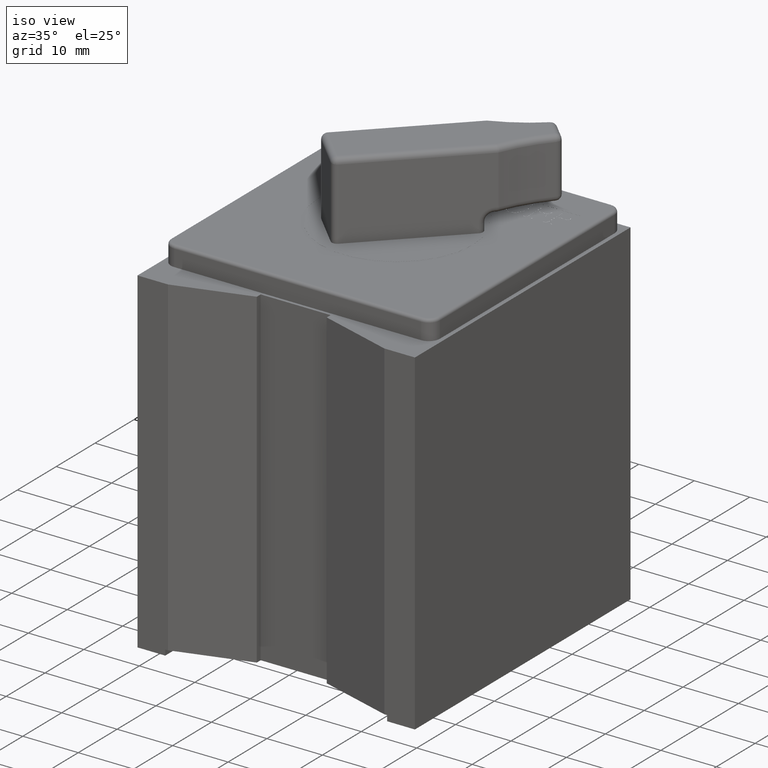
[diagram: clean part render]
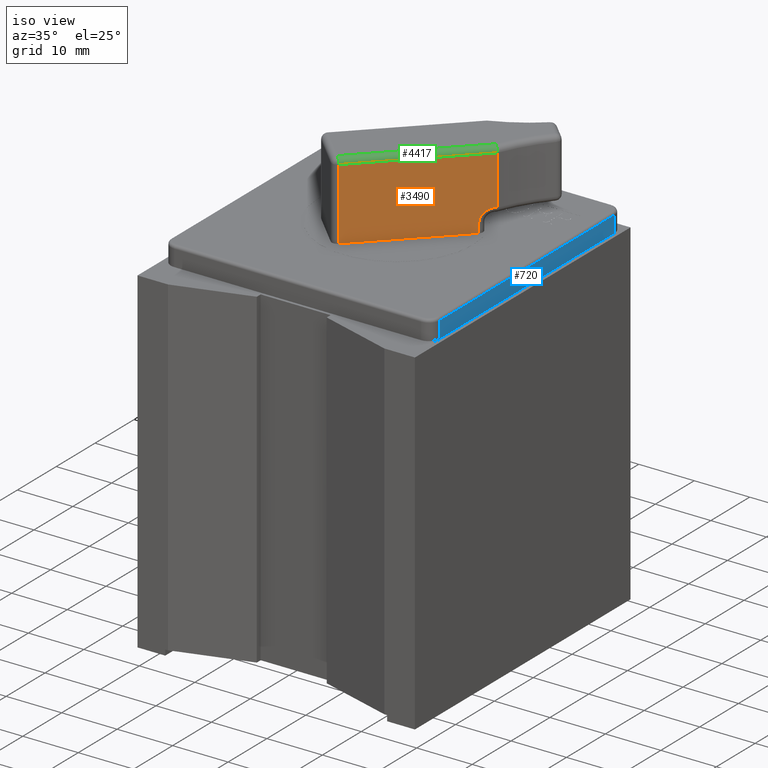
[diagram: same view with three faces highlighted in distinct colors, each labeled with its STEP entity id]
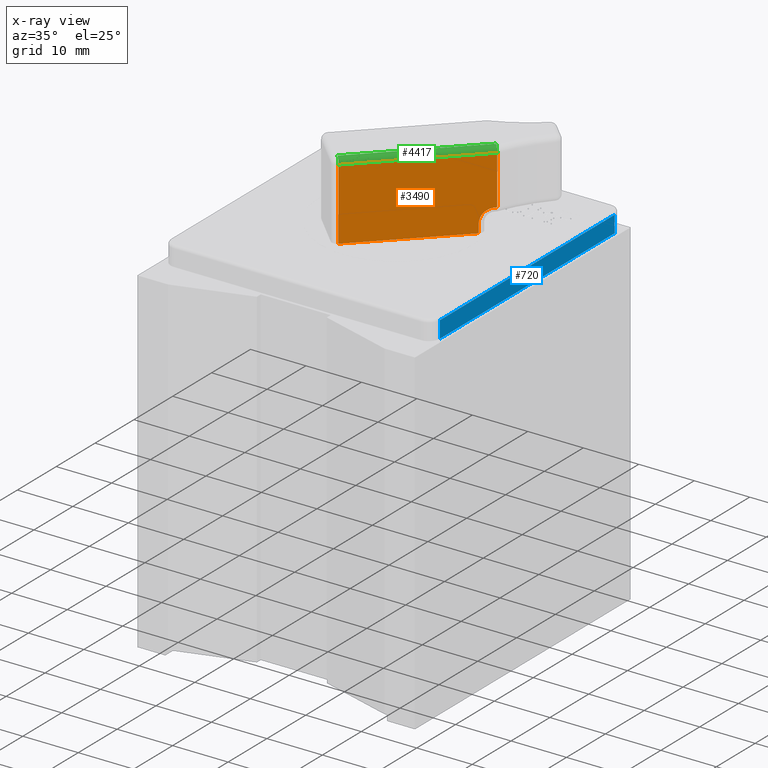
[diagram: x-ray of the same camera — body ghosted, the three highlighted faces saturated]
A machine part, iso view with three faces highlighted in distinct colors.
The next image is the same camera in x-ray (body ghosted, the three faces saturated) — at least one of them is partly hidden behind the body in this view.
Their STEP definitions:

[orange] entity #3490 — the highlighted planar face has unit normal (-0.7071, 0.7071, 0).
#12 = CARTESIAN_POINT ( 'NONE',  ( 6.959274367821016000, 8.852808281751851600, 113.2999999999761900 ) ) ;
#67 = EDGE_CURVE ( 'NONE', #334, #4733, #3634, .T. ) ;
#152 = FACE_OUTER_BOUND ( 'NONE', #5762, .T. ) ;
#173 = LINE ( 'NONE', #1313, #4930 ) ;
#211 = VECTOR ( 'NONE', #3506, 1000.000000000000000 ) ;
#237 = EDGE_CURVE ( 'NONE', #2357, #2518, #173, .T. ) ;
#241 = LINE ( 'NONE', #4512, #5709 ) ;
#334 = VERTEX_POINT ( 'NONE', #4701 ) ;
#354 = VERTEX_POINT ( 'NONE', #3319 ) ;
#364 = DIRECTION ( 'NONE',  ( -0.7071067811865477900, 0.7071067811865473500, 0.0000000000000000000 ) ) ;
#500 = CIRCLE ( 'NONE', #1202, 2.500000000000002700 ) ;
#605 = VERTEX_POINT ( 'NONE', #2183 ) ;
#723 = CARTESIAN_POINT ( 'NONE',  ( 7.167244478542658100, 9.060778392473492800, 124.6999999999761900 ) ) ;
#838 = LINE ( 'NONE', #5004, #4745 ) ;
#1084 = ORIENTED_EDGE ( 'NONE', *, *, #4727, .T. ) ;
#1202 = AXIS2_PLACEMENT_3D ( 'NONE', #12, #5080, #2323 ) ;
#1213 = ORIENTED_EDGE ( 'NONE', *, *, #1846, .T. ) ;
#1292 = CARTESIAN_POINT ( 'NONE',  ( -10.36484177124930600, -8.471307857318480600, 125.6999999999761900 ) ) ;
#1313 = CARTESIAN_POINT ( 'NONE',  ( -10.36484177124930600, -8.471307857318480600, 111.7999999999761900 ) ) ;
#1369 = DIRECTION ( 'NONE',  ( 0.0000000000000000000, 0.0000000000000000000, 1.000000000000000000 ) ) ;
#1402 = AXIS2_PLACEMENT_3D ( 'NONE', #1292, #364, #2686 ) ;
#1714 = DIRECTION ( 'NONE',  ( -0.7071067811865473500, -0.7071067811865477900, -0.0000000000000000000 ) ) ;
#1810 = LINE ( 'NONE', #4298, #1937 ) ;
#1846 = EDGE_CURVE ( 'NONE', #4976, #605, #241, .T. ) ;
#1937 = VECTOR ( 'NONE', #2011, 1000.000000000000000 ) ;
#1980 = DIRECTION ( 'NONE',  ( 0.7071067811865473500, 0.7071067811865477900, -0.0000000000000000000 ) ) ;
#2011 = DIRECTION ( 'NONE',  ( 0.0000000000000000000, 0.0000000000000000000, -1.000000000000000000 ) ) ;
#2183 = CARTESIAN_POINT ( 'NONE',  ( -9.657734990062758500, -7.764201076131932700, 124.6999999999761900 ) ) ;
#2212 = PLANE ( 'NONE',  #1402 ) ;
#2323 = DIRECTION ( 'NONE',  ( -0.7071067811865474600, -0.7071067811865477900, 0.0000000000000000000 ) ) ;
#2357 = VERTEX_POINT ( 'NONE', #4370 ) ;
#2431 = ORIENTED_EDGE ( 'NONE', *, *, #237, .T. ) ;
#2518 = VERTEX_POINT ( 'NONE', #4565 ) ;
#2686 = DIRECTION ( 'NONE',  ( -0.7071067811865473500, -0.7071067811865477900, 0.0000000000000000000 ) ) ;
#2822 = LINE ( 'NONE', #3904, #211 ) ;
#2974 = ORIENTED_EDGE ( 'NONE', *, *, #3710, .T. ) ;
#3129 = ORIENTED_EDGE ( 'NONE', *, *, #3521, .T. ) ;
#3319 = CARTESIAN_POINT ( 'NONE',  ( 5.191507414854647200, 7.085041328785481900, 113.2999999999761900 ) ) ;
#3490 = ADVANCED_FACE ( 'NONE', ( #152 ), #2212, .F. ) ;
#3506 = DIRECTION ( 'NONE',  ( -0.0000000000000000000, -0.0000000000000000000, 1.000000000000000000 ) ) ;
#3521 = EDGE_CURVE ( 'NONE', #354, #334, #500, .T. ) ;
#3634 = LINE ( 'NONE', #5634, #5490 ) ;
#3710 = EDGE_CURVE ( 'NONE', #605, #2357, #1810, .T. ) ;
#3904 = CARTESIAN_POINT ( 'NONE',  ( 7.167244478542659900, 9.060778392473492800, 125.6999999999761900 ) ) ;
#4298 = CARTESIAN_POINT ( 'NONE',  ( -9.657734990062758500, -7.764201076131932700, 125.6999999999761900 ) ) ;
#4370 = CARTESIAN_POINT ( 'NONE',  ( -9.657734990062758500, -7.764201076131932700, 111.7999999999761900 ) ) ;
#4512 = CARTESIAN_POINT ( 'NONE',  ( -10.36484177124931000, -8.471307857318484100, 124.6999999999761900 ) ) ;
#4565 = CARTESIAN_POINT ( 'NONE',  ( 5.191507414854645400, 7.085041328785474800, 111.7999999999761900 ) ) ;
#4685 = ORIENTED_EDGE ( 'NONE', *, *, #67, .T. ) ;
#4701 = CARTESIAN_POINT ( 'NONE',  ( 6.959274367821014300, 8.852808281751851600, 115.7999999999761900 ) ) ;
#4727 = EDGE_CURVE ( 'NONE', #2518, #354, #838, .T. ) ;
#4733 = VERTEX_POINT ( 'NONE', #5967 ) ;
#4745 = VECTOR ( 'NONE', #1369, 1000.000000000000000 ) ;
#4930 = VECTOR ( 'NONE', #5005, 999.9999999999998900 ) ;
#4974 = EDGE_CURVE ( 'NONE', #4733, #4976, #2822, .T. ) ;
#4976 = VERTEX_POINT ( 'NONE', #723 ) ;
#5004 = CARTESIAN_POINT ( 'NONE',  ( 5.191507414854645400, 7.085041328785474800, 125.6999999999761900 ) ) ;
#5005 = DIRECTION ( 'NONE',  ( 0.7071067811865473500, 0.7071067811865477900, 0.0000000000000000000 ) ) ;
#5080 = DIRECTION ( 'NONE',  ( -0.7071067811865476800, 0.7071067811865473500, 0.0000000000000000000 ) ) ;
#5251 = ORIENTED_EDGE ( 'NONE', *, *, #4974, .T. ) ;
#5490 = VECTOR ( 'NONE', #1980, 999.9999999999998900 ) ;
#5634 = CARTESIAN_POINT ( 'NONE',  ( -10.36484177124930600, -8.471307857318480600, 115.7999999999761900 ) ) ;
#5709 = VECTOR ( 'NONE', #1714, 999.9999999999998900 ) ;
#5762 = EDGE_LOOP ( 'NONE', ( #2431, #1084, #3129, #4685, #5251, #1213, #2974 ) ) ;
#5967 = CARTESIAN_POINT ( 'NONE',  ( 7.167244478542659900, 9.060778392473492800, 115.7999999999761900 ) ) ;

[blue] entity #720 — the highlighted planar face has unit normal (-1, 0, 0).
#522 = EDGE_CURVE ( 'NONE', #547, #1172, #3011, .T. ) ;
#547 = VERTEX_POINT ( 'NONE', #4318 ) ;
#720 = ADVANCED_FACE ( 'NONE', ( #3636 ), #1818, .F. ) ;
#805 = VECTOR ( 'NONE', #5747, 1000.000000000000000 ) ;
#860 = DIRECTION ( 'NONE',  ( -1.000000000000000000, 0.0000000000000000000, 0.0000000000000000000 ) ) ;
#1172 = VERTEX_POINT ( 'NONE', #1829 ) ;
#1174 = CARTESIAN_POINT ( 'NONE',  ( 17.32474630655250200, -20.21065196765025700, 111.2999999999761900 ) ) ;
#1189 = ORIENTED_EDGE ( 'NONE', *, *, #522, .F. ) ;
#1231 = VECTOR ( 'NONE', #4962, 1000.000000000000000 ) ;
#1250 = DIRECTION ( 'NONE',  ( -0.0000000000000000000, -1.000000000000000000, -0.0000000000000000000 ) ) ;
#1309 = LINE ( 'NONE', #2579, #4118 ) ;
#1347 = CARTESIAN_POINT ( 'NONE',  ( 17.32474630655250200, -20.21065196765025700, 111.7999999999761900 ) ) ;
#1751 = EDGE_CURVE ( 'NONE', #3140, #5177, #5934, .T. ) ;
#1818 = PLANE ( 'NONE',  #5531 ) ;
#1829 = CARTESIAN_POINT ( 'NONE',  ( 17.32474630655250200, 24.78934803234973900, 108.2999999999761900 ) ) ;
#2403 = ORIENTED_EDGE ( 'NONE', *, *, #3502, .T. ) ;
#2495 = DIRECTION ( 'NONE',  ( -0.0000000000000000000, -0.0000000000000000000, -1.000000000000000000 ) ) ;
#2517 = CARTESIAN_POINT ( 'NONE',  ( 17.32474630655250200, 24.78934803234973900, 111.7999999999761900 ) ) ;
#2579 = CARTESIAN_POINT ( 'NONE',  ( 17.32474630655250200, -20.21065196765025700, 111.2999999999761900 ) ) ;
#2625 = CARTESIAN_POINT ( 'NONE',  ( 17.32474630655250200, -20.21065196765025700, 108.2999999999761900 ) ) ;
#2869 = EDGE_CURVE ( 'NONE', #547, #3140, #1309, .T. ) ;
#3011 = LINE ( 'NONE', #2517, #4563 ) ;
#3049 = CARTESIAN_POINT ( 'NONE',  ( 17.32474630655250200, -20.21065196765025700, 111.7999999999761900 ) ) ;
#3140 = VERTEX_POINT ( 'NONE', #1174 ) ;
#3231 = ORIENTED_EDGE ( 'NONE', *, *, #1751, .T. ) ;
#3502 = EDGE_CURVE ( 'NONE', #5177, #1172, #3678, .T. ) ;
#3636 = FACE_OUTER_BOUND ( 'NONE', #3842, .T. ) ;
#3640 = ORIENTED_EDGE ( 'NONE', *, *, #2869, .T. ) ;
#3678 = LINE ( 'NONE', #2625, #1231 ) ;
#3842 = EDGE_LOOP ( 'NONE', ( #1189, #3640, #3231, #2403 ) ) ;
#4090 = CARTESIAN_POINT ( 'NONE',  ( 17.32474630655250200, -20.21065196765025700, 108.2999999999761900 ) ) ;
#4104 = DIRECTION ( 'NONE',  ( 0.0000000000000000000, 0.0000000000000000000, 1.000000000000000000 ) ) ;
#4118 = VECTOR ( 'NONE', #1250, 1000.000000000000000 ) ;
#4318 = CARTESIAN_POINT ( 'NONE',  ( 17.32474630655250200, 24.78934803234973900, 111.2999999999761900 ) ) ;
#4563 = VECTOR ( 'NONE', #2495, 1000.000000000000000 ) ;
#4962 = DIRECTION ( 'NONE',  ( 0.0000000000000000000, 1.000000000000000000, 0.0000000000000000000 ) ) ;
#5177 = VERTEX_POINT ( 'NONE', #4090 ) ;
#5531 = AXIS2_PLACEMENT_3D ( 'NONE', #1347, #860, #4104 ) ;
#5747 = DIRECTION ( 'NONE',  ( -0.0000000000000000000, -0.0000000000000000000, -1.000000000000000000 ) ) ;
#5934 = LINE ( 'NONE', #3049, #805 ) ;

[green] entity #4417 — the highlighted cylindrical surface (edge-blend (fillet) strip) has radius 1 mm, axis along (-0.7071, -0.7071, 0).
#241 = LINE ( 'NONE', #4512, #5709 ) ;
#396 = DIRECTION ( 'NONE',  ( 0.7071067811865468000, -0.7071067811865484600, 0.0000000000000000000 ) ) ;
#420 = DIRECTION ( 'NONE',  ( -0.7071067811865398000, -0.7071067811865554600, 0.0000000000000000000 ) ) ;
#447 = EDGE_CURVE ( 'NONE', #5965, #3433, #4938, .T. ) ;
#605 = VERTEX_POINT ( 'NONE', #2183 ) ;
#673 = EDGE_CURVE ( 'NONE', #5965, #605, #814, .T. ) ;
#723 = CARTESIAN_POINT ( 'NONE',  ( 7.167244478542658100, 9.060778392473492800, 124.6999999999761900 ) ) ;
#750 = ORIENTED_EDGE ( 'NONE', *, *, #673, .T. ) ;
#814 = CIRCLE ( 'NONE', #2122, 1.000000000000000000 ) ;
#954 = CARTESIAN_POINT ( 'NONE',  ( 14.31098947410541200, 17.61873695040935000, 124.6999999999761900 ) ) ;
#970 = ORIENTED_EDGE ( 'NONE', *, *, #5167, .T. ) ;
#1046 = AXIS2_PLACEMENT_3D ( 'NONE', #954, #1876, #5103 ) ;
#1385 = ORIENTED_EDGE ( 'NONE', *, *, #447, .F. ) ;
#1622 = DIRECTION ( 'NONE',  ( 0.7071067811865473500, 0.7071067811865477900, -0.0000000000000000000 ) ) ;
#1714 = DIRECTION ( 'NONE',  ( -0.7071067811865473500, -0.7071067811865477900, -0.0000000000000000000 ) ) ;
#1800 = CARTESIAN_POINT ( 'NONE',  ( 6.460137697356104900, 9.767885173660031800, 124.6999999999761900 ) ) ;
#1846 = EDGE_CURVE ( 'NONE', #4976, #605, #241, .T. ) ;
#1876 = DIRECTION ( 'NONE',  ( -0.7071067811865473500, -0.7071067811865476800, 0.0000000000000000000 ) ) ;
#2122 = AXIS2_PLACEMENT_3D ( 'NONE', #5423, #2697, #396 ) ;
#2183 = CARTESIAN_POINT ( 'NONE',  ( -9.657734990062758500, -7.764201076131932700, 124.6999999999761900 ) ) ;
#2697 = DIRECTION ( 'NONE',  ( 0.7071067811865480200, 0.7071067811865470200, 9.199760500100212300E-016 ) ) ;
#2699 = AXIS2_PLACEMENT_3D ( 'NONE', #1800, #420, #2797 ) ;
#2763 = CARTESIAN_POINT ( 'NONE',  ( -10.36484177124930300, -7.057094294945387400, 125.6999999999761900 ) ) ;
#2797 = DIRECTION ( 'NONE',  ( -0.7071067811865554600, 0.7071067811865398000, 0.0000000000000000000 ) ) ;
#2890 = CIRCLE ( 'NONE', #2699, 1.000000000000000000 ) ;
#3433 = VERTEX_POINT ( 'NONE', #3515 ) ;
#3515 = CARTESIAN_POINT ( 'NONE',  ( 6.460137697356104900, 9.767885173660031800, 125.6999999999761900 ) ) ;
#3856 = VECTOR ( 'NONE', #1622, 999.9999999999998900 ) ;
#4362 = CARTESIAN_POINT ( 'NONE',  ( 6.605720977225943500, 9.913468453529871400, 125.6999999999761900 ) ) ;
#4417 = ADVANCED_FACE ( 'NONE', ( #5337 ), #5043, .T. ) ;
#4505 = ORIENTED_EDGE ( 'NONE', *, *, #1846, .F. ) ;
#4512 = CARTESIAN_POINT ( 'NONE',  ( -10.36484177124931000, -8.471307857318484100, 124.6999999999761900 ) ) ;
#4938 = LINE ( 'NONE', #4362, #3856 ) ;
#4976 = VERTEX_POINT ( 'NONE', #723 ) ;
#5043 = CYLINDRICAL_SURFACE ( 'NONE', #1046, 1.000000000000001300 ) ;
#5103 = DIRECTION ( 'NONE',  ( 0.7071067811865475700, -0.7071067811865475700, 0.0000000000000000000 ) ) ;
#5167 = EDGE_CURVE ( 'NONE', #4976, #3433, #2890, .T. ) ;
#5337 = FACE_OUTER_BOUND ( 'NONE', #5529, .T. ) ;
#5423 = CARTESIAN_POINT ( 'NONE',  ( -10.36484177124930600, -7.057094294945383900, 124.6999999999761900 ) ) ;
#5529 = EDGE_LOOP ( 'NONE', ( #750, #4505, #970, #1385 ) ) ;
#5709 = VECTOR ( 'NONE', #1714, 999.9999999999998900 ) ;
#5965 = VERTEX_POINT ( 'NONE', #2763 ) ;